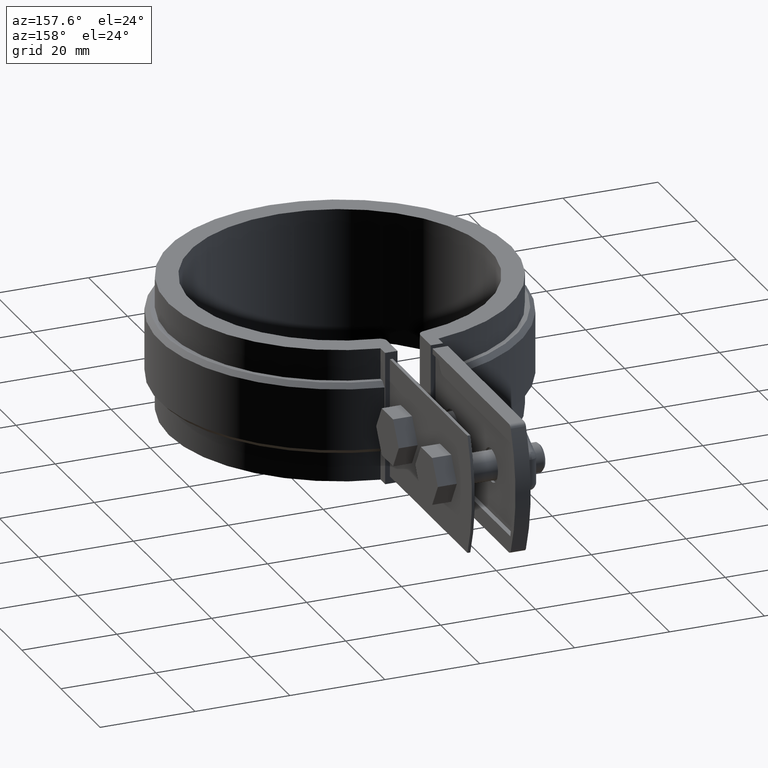
[diagram: clean part render]
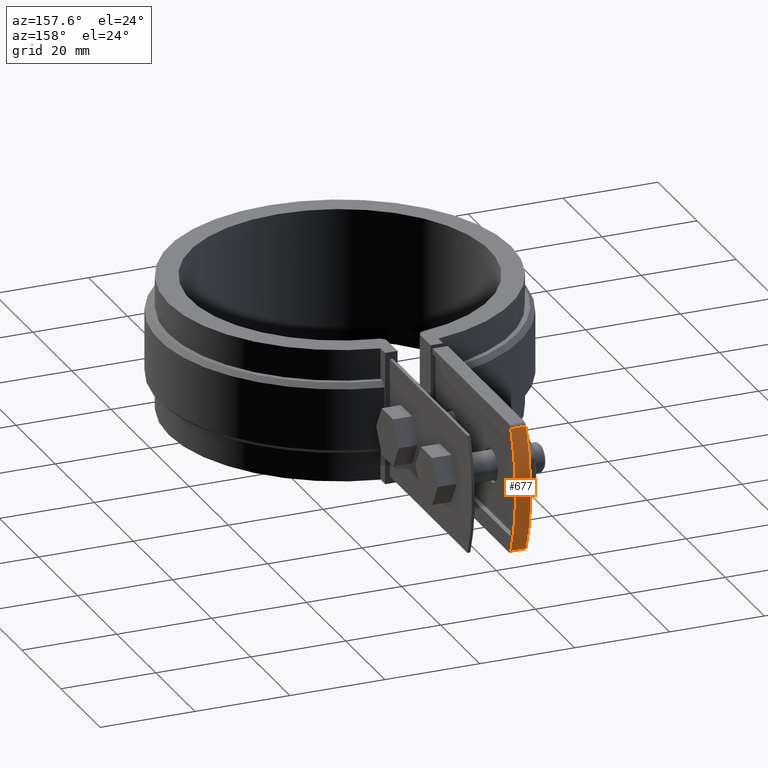
[diagram: same view with one face highlighted and labeled with its STEP entity id]
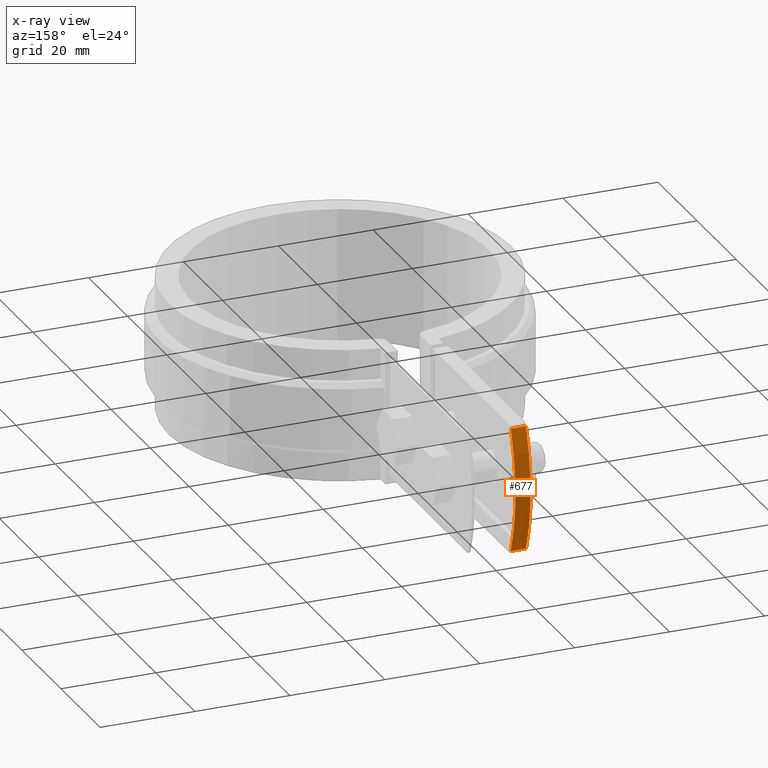
[diagram: x-ray of the same camera — body ghosted, the highlighted face saturated]
A machine part, auxiliary view. The second image highlights one B-rep face of the part: STEP entity #677.
The next image is the same camera in x-ray: the body ghosted, the highlighted face saturated — about 0% of this face is hidden behind the body in this view.
In plain terms, the highlighted cylindrical surface (partial cylindrical patch) has radius 36.4 mm, axis along (1, -0, 0).
Its self-contained STEP definition (entity closure, byte-faithful):
#677 = ADVANCED_FACE( '', ( #1284 ), #1285, .T. );
#1284 = FACE_OUTER_BOUND( '', #2570, .T. );
#1285 = CYLINDRICAL_SURFACE( '', #2571, 36.3999999999944 );
#2570 = EDGE_LOOP( '', ( #5882, #5883, #5884, #5885 ) );
#2571 = AXIS2_PLACEMENT_3D( '', #5886, #5887, #5888 );
#5882 = ORIENTED_EDGE( '', *, *, #7417, .T. );
#5883 = ORIENTED_EDGE( '', *, *, #7569, .T. );
#5884 = ORIENTED_EDGE( '', *, *, #7248, .F. );
#5885 = ORIENTED_EDGE( '', *, *, #7570, .T. );
#5886 = CARTESIAN_POINT( '', ( -3.50000000000018, 44.8936164020064, -12.5000000000032 ) );
#5887 = DIRECTION( '', ( 1.00000000000000, -4.59168467057637E-016, 3.52168329192437E-016 ) );
#5888 = DIRECTION( '', ( 2.92858004907691E-016, 0.926467966726493, 0.376373626373684 ) );
#7248 = EDGE_CURVE( '', #8438, #8439, #8440, .T. );
#7417 = EDGE_CURVE( '', #8774, #8772, #8775, .T. );
#7569 = EDGE_CURVE( '', #8772, #8439, #8993, .T. );
#7570 = EDGE_CURVE( '', #8438, #8774, #8994, .F. );
#8438 = VERTEX_POINT( '', #11738 );
#8439 = VERTEX_POINT( '', #11739 );
#8440 = CIRCLE( '', #11740, 36.4000000000000 );
#8772 = VERTEX_POINT( '', #12221 );
#8774 = VERTEX_POINT( '', #12223 );
#8775 = CIRCLE( '', #12224, 36.4000000000000 );
#8993 = LINE( '', #12542, #12543 );
#8994 = LINE( '', #12544, #12545 );
#11738 = CARTESIAN_POINT( '', ( -6.69999999999959, 78.8705036048008, 0.558757062143708 ) );
#11739 = CARTESIAN_POINT( '', ( -6.69999999999958, 78.8705036048008, -25.5587570621501 ) );
#11740 = AXIS2_PLACEMENT_3D( '', #14008, #14009, #14010 );
#12221 = CARTESIAN_POINT( '', ( -3.50000000000016, 78.8705036048008, -25.5587570621501 ) );
#12223 = CARTESIAN_POINT( '', ( -3.50000000000016, 78.8705036048008, 0.558757062143709 ) );
#12224 = AXIS2_PLACEMENT_3D( '', #14217, #14218, #14219 );
#12542 = CARTESIAN_POINT( '', ( -3.50000000000016, 78.8705036048008, -25.5587570621501 ) );
#12543 = VECTOR( '', #14473, 999.999999999941 );
#12544 = CARTESIAN_POINT( '', ( -3.50000000000017, 78.8705036048008, 0.558757062143712 ) );
#12545 = VECTOR( '', #14474, 999.999999999941 );
#14008 = CARTESIAN_POINT( '', ( -6.69999999999961, 44.8936164020064, -12.5000000000032 ) );
#14009 = DIRECTION( '', ( -1.00000000000000, 6.97454658812693E-016, -3.52168329192437E-016 ) );
#14010 = DIRECTION( '', ( -3.52168329192437E-016, -9.67108337856225E-017, 1.00000000000000 ) );
#14217 = CARTESIAN_POINT( '', ( -3.50000000000018, 44.8936164020064, -12.5000000000032 ) );
#14218 = DIRECTION( '', ( -1.00000000000000, 6.97454658812693E-016, -3.52168329192437E-016 ) );
#14219 = DIRECTION( '', ( -3.52168329192437E-016, -9.67108337856225E-017, 1.00000000000000 ) );
#14473 = DIRECTION( '', ( -1.00000000000000, 4.59168467057637E-016, -3.52168329192437E-016 ) );
#14474 = DIRECTION( '', ( -1.00000000000000, 4.59168467057637E-016, -3.52168329192437E-016 ) );